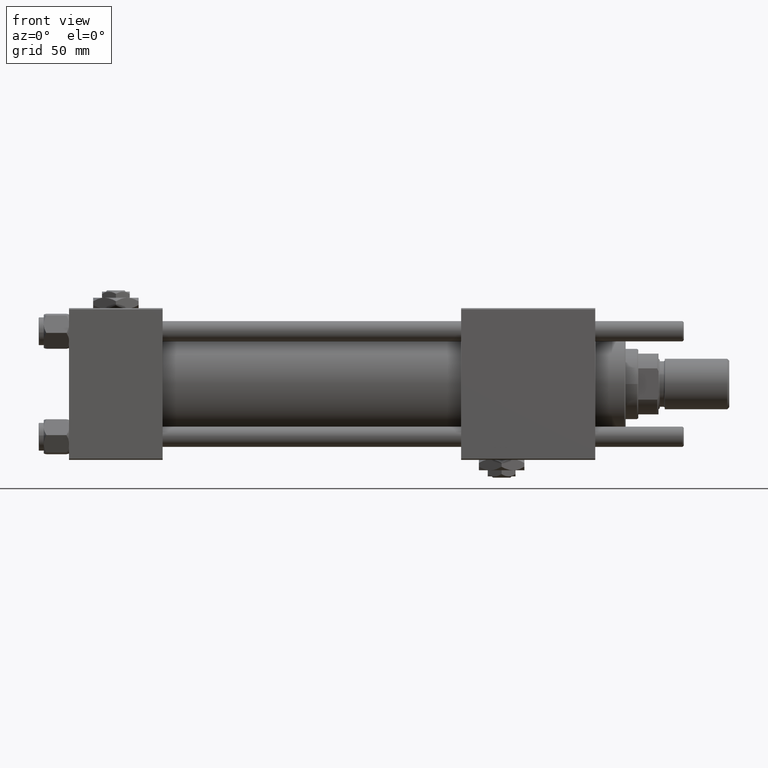
[diagram: clean part render]
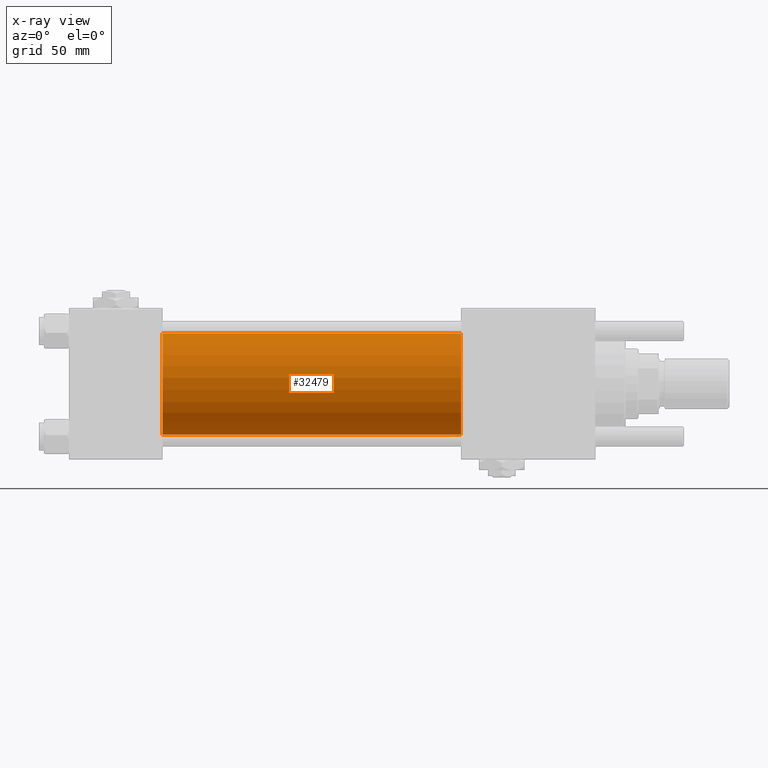
[diagram: x-ray — body ghosted, one internal face saturated and labeled with its STEP entity id]
A machine part, front view, then the same camera in x-ray: the body is ghosted and one INTERNAL B-rep face — a face not visible from any outside direction — is saturated and labeled: STEP entity #32479.
In plain terms, the highlighted cylindrical surface (partial cylindrical patch) has radius 20 mm, axis along (-1, -0, -0).
Its self-contained STEP definition (entity closure, byte-faithful):
#2727 = DIRECTION ( 'NONE',  ( 0.000000000000000000, 0.000000000000000000, 1.000000000000000000 ) ) ;
#3620 = FACE_OUTER_BOUND ( 'NONE', #54585, .T. ) ;
#3831 = AXIS2_PLACEMENT_3D ( 'NONE', #8990, #4790, #17415 ) ;
#4085 = EDGE_CURVE ( 'NONE', #20613, #20994, #36131, .T. ) ;
#4790 = DIRECTION ( 'NONE',  ( 1.000000000000000000, 0.000000000000000000, 0.000000000000000000 ) ) ;
#6031 = DIRECTION ( 'NONE',  ( -1.000000000000000000, -0.000000000000000000, -0.000000000000000000 ) ) ;
#8990 = CARTESIAN_POINT ( 'NONE',  ( 155.0000000000000000, -2.602085213965210642E-15, 0.000000000000000000 ) ) ;
#11048 = CARTESIAN_POINT ( 'NONE',  ( 37.00000000000000000, -1.527916156705042519E-16, -20.00000000000000000 ) ) ;
#12732 = EDGE_CURVE ( 'NONE', #57425, #20994, #47660, .T. ) ;
#14216 = VECTOR ( 'NONE', #47368, 1000.000000000000000 ) ;
#16029 = AXIS2_PLACEMENT_3D ( 'NONE', #57410, #20786, #39089 ) ;
#17415 = DIRECTION ( 'NONE',  ( 0.000000000000000000, 0.000000000000000000, -1.000000000000000000 ) ) ;
#18947 = EDGE_CURVE ( 'NONE', #43383, #57425, #33477, .T. ) ;
#19439 = ORIENTED_EDGE ( 'NONE', *, *, #4085, .F. ) ;
#19452 = ORIENTED_EDGE ( 'NONE', *, *, #57596, .F. ) ;
#20613 = VERTEX_POINT ( 'NONE', #23521 ) ;
#20786 = DIRECTION ( 'NONE',  ( 1.000000000000000000, 0.000000000000000000, 0.000000000000000000 ) ) ;
#20994 = VERTEX_POINT ( 'NONE', #11048 ) ;
#21913 = DIRECTION ( 'NONE',  ( -1.000000000000000000, -0.000000000000000000, -0.000000000000000000 ) ) ;
#23521 = CARTESIAN_POINT ( 'NONE',  ( 37.00000000000000000, -2.602085213965210642E-15, 20.00000000000000000 ) ) ;
#24841 = CARTESIAN_POINT ( 'NONE',  ( 155.0000000000000000, -1.527916156705042519E-16, -20.00000000000000000 ) ) ;
#27239 = AXIS2_PLACEMENT_3D ( 'NONE', #49242, #21913, #2727 ) ;
#28822 = CARTESIAN_POINT ( 'NONE',  ( 155.0000000000000000, -2.602085213965210642E-15, 20.00000000000000000 ) ) ;
#30774 = ORIENTED_EDGE ( 'NONE', *, *, #12732, .T. ) ;
#32479 = ADVANCED_FACE ( 'NONE', ( #3620 ), #43813, .F. ) ;
#32737 = LINE ( 'NONE', #28822, #48123 ) ;
#33477 = CIRCLE ( 'NONE', #3831, 20.00000000000000000 ) ;
#36131 = CIRCLE ( 'NONE', #16029, 20.00000000000000000 ) ;
#36451 = CARTESIAN_POINT ( 'NONE',  ( 155.0000000000000000, -2.602085213965210642E-15, 20.00000000000000000 ) ) ;
#39089 = DIRECTION ( 'NONE',  ( 0.000000000000000000, 0.000000000000000000, -1.000000000000000000 ) ) ;
#43383 = VERTEX_POINT ( 'NONE', #36451 ) ;
#43813 = CYLINDRICAL_SURFACE ( 'NONE', #27239, 20.00000000000000000 ) ;
#47368 = DIRECTION ( 'NONE',  ( -1.000000000000000000, -0.000000000000000000, -0.000000000000000000 ) ) ;
#47660 = LINE ( 'NONE', #24841, #14216 ) ;
#48123 = VECTOR ( 'NONE', #6031, 1000.000000000000000 ) ;
#49242 = CARTESIAN_POINT ( 'NONE',  ( 155.0000000000000000, -2.602085213965210642E-15, 0.000000000000000000 ) ) ;
#54585 = EDGE_LOOP ( 'NONE', ( #56207, #30774, #19439, #19452 ) ) ;
#56207 = ORIENTED_EDGE ( 'NONE', *, *, #18947, .T. ) ;
#57410 = CARTESIAN_POINT ( 'NONE',  ( 37.00000000000000000, -2.602085213965210642E-15, 0.000000000000000000 ) ) ;
#57425 = VERTEX_POINT ( 'NONE', #58896 ) ;
#57596 = EDGE_CURVE ( 'NONE', #43383, #20613, #32737, .T. ) ;
#58896 = CARTESIAN_POINT ( 'NONE',  ( 155.0000000000000000, -1.527916156705042519E-16, -20.00000000000000000 ) ) ;